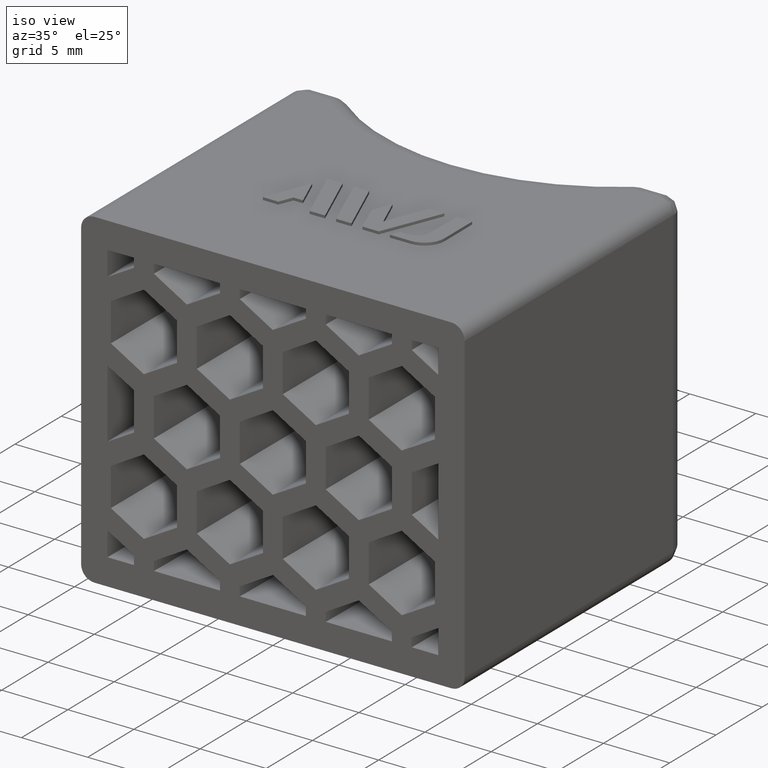
[diagram: clean part render]
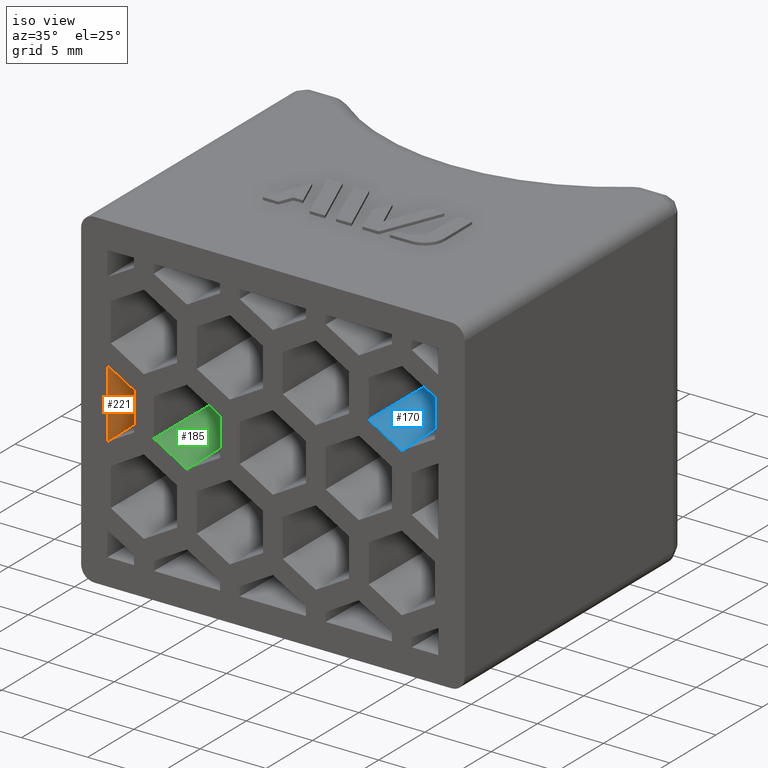
[diagram: same view with three faces highlighted in distinct colors, each labeled with its STEP entity id]
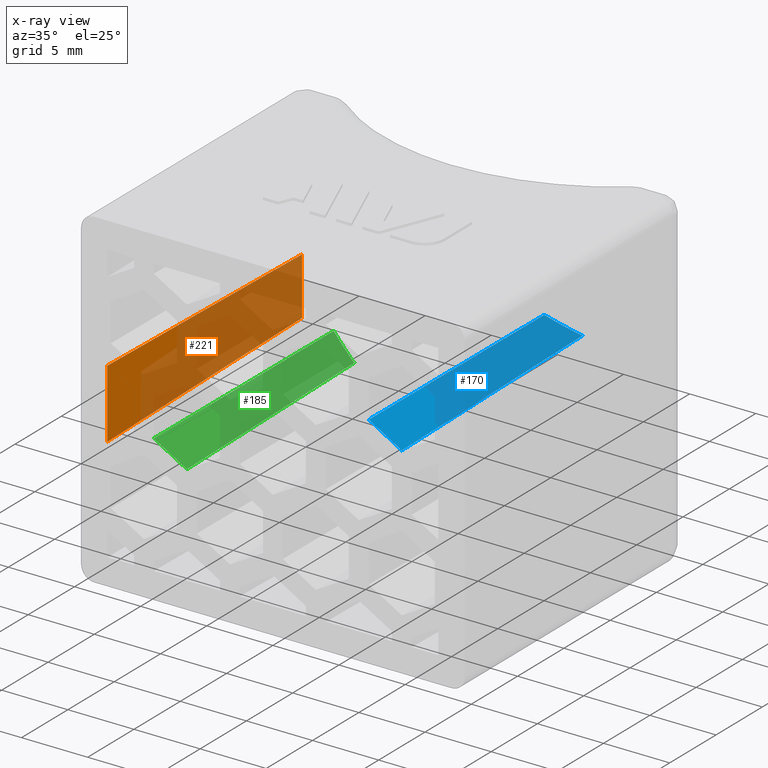
[diagram: x-ray of the same camera — body ghosted, the three highlighted faces saturated]
A machine part, iso view with three faces highlighted in distinct colors.
The next image is the same camera in x-ray (body ghosted, the three faces saturated) — at least one of them is partly hidden behind the body in this view.
Their STEP definitions:

[orange] entity #221 — the highlighted planar face has unit normal (-1, 0, 0).
#221 = ADVANCED_FACE( '', ( #608 ), #609, .F. );
#608 = FACE_OUTER_BOUND( '', #1324, .T. );
#609 = PLANE( '', #1325 );
#1324 = EDGE_LOOP( '', ( #2911, #2912, #2913, #2914 ) );
#1325 = AXIS2_PLACEMENT_3D( '', #2915, #2916, #2917 );
#2911 = ORIENTED_EDGE( '', *, *, #3779, .F. );
#2912 = ORIENTED_EDGE( '', *, *, #3393, .F. );
#2913 = ORIENTED_EDGE( '', *, *, #3775, .F. );
#2914 = ORIENTED_EDGE( '', *, *, #3844, .T. );
#2915 = CARTESIAN_POINT( '', ( -12.5000000000000, 21.0000000000000, -10.5000000000000 ) );
#2916 = DIRECTION( '', ( -1.00000000000000, 6.07153216591882E-017, 0.000000000000000 ) );
#2917 = DIRECTION( '', ( 6.07153216591882E-017, 1.00000000000000, 0.000000000000000 ) );
#3393 = EDGE_CURVE( '', #3918, #3921, #3922, .T. );
#3775 = EDGE_CURVE( '', #4580, #3918, #4581, .T. );
#3779 = EDGE_CURVE( '', #3921, #4587, #4588, .T. );
#3844 = EDGE_CURVE( '', #4580, #4587, #4681, .T. );
#3918 = VERTEX_POINT( '', #4784 );
#3921 = VERTEX_POINT( '', #4788 );
#3922 = LINE( '', #4789, #4790 );
#4580 = VERTEX_POINT( '', #5752 );
#4581 = LINE( '', #5753, #5754 );
#4587 = VERTEX_POINT( '', #5762 );
#4588 = LINE( '', #5763, #5764 );
#4681 = LINE( '', #5904, #5905 );
#4784 = CARTESIAN_POINT( '', ( -12.5000000000000, -6.93889390390723E-015, -2.59807621135332 ) );
#4788 = CARTESIAN_POINT( '', ( -12.5000000000000, -6.93889390390723E-015, 2.59807621135332 ) );
#4789 = CARTESIAN_POINT( '', ( -12.5000000000000, -6.93889390390723E-015, -10.5000000000000 ) );
#4790 = VECTOR( '', #6051, 1000.00000000000 );
#5752 = CARTESIAN_POINT( '', ( -12.5000000000000, 21.0000000000000, -2.17481338108210 ) );
#5753 = CARTESIAN_POINT( '', ( -12.5000000000000, 20.8322708975950, -2.17819402368224 ) );
#5754 = VECTOR( '', #6587, 1000.00000000000 );
#5762 = CARTESIAN_POINT( '', ( -12.5000000000000, 21.0000000000000, 2.17481338108211 ) );
#5763 = CARTESIAN_POINT( '', ( -12.5000000000000, 21.2553618517966, 2.16966646774236 ) );
#5764 = VECTOR( '', #6593, 1000.00000000000 );
#5904 = CARTESIAN_POINT( '', ( -12.5000000000000, 21.0000000000000, -10.5000000000000 ) );
#5905 = VECTOR( '', #6692, 1000.00000000000 );
#6051 = DIRECTION( '', ( 0.000000000000000, 0.000000000000000, 1.00000000000000 ) );
#6587 = DIRECTION( '', ( -6.07029929479006E-017, -0.999796942337605, -0.0201512801671580 ) );
#6593 = DIRECTION( '', ( 6.07029929479006E-017, 0.999796942337605, -0.0201512801671580 ) );
#6692 = DIRECTION( '', ( 0.000000000000000, 0.000000000000000, 1.00000000000000 ) );

[blue] entity #170 — the highlighted planar face has unit normal (-0.4999, 0.0175, -0.8659).
#170 = ADVANCED_FACE( '', ( #506 ), #507, .F. );
#506 = FACE_OUTER_BOUND( '', #1222, .T. );
#507 = PLANE( '', #1223 );
#1222 = EDGE_LOOP( '', ( #2544, #2545, #2546, #2547 ) );
#1223 = AXIS2_PLACEMENT_3D( '', #2548, #2549, #2550 );
#2544 = ORIENTED_EDGE( '', *, *, #3754, .T. );
#2545 = ORIENTED_EDGE( '', *, *, #3755, .T. );
#2546 = ORIENTED_EDGE( '', *, *, #3468, .T. );
#2547 = ORIENTED_EDGE( '', *, *, #3752, .F. );
#2548 = CARTESIAN_POINT( '', ( 4.87500000000000, -6.93889390390723E-015, 5.55699634095015 ) );
#2549 = DIRECTION( '', ( -0.499923847578196, 0.0174524064372835, -0.865893503920754 ) );
#2550 = DIRECTION( '', ( -0.866025403784439, 0.000000000000000, 0.500000000000000 ) );
#3468 = EDGE_CURVE( '', #4071, #4069, #4072, .T. );
#3752 = EDGE_CURVE( '', #4545, #4069, #4547, .T. );
#3754 = EDGE_CURVE( '', #4545, #4549, #4550, .T. );
#3755 = EDGE_CURVE( '', #4549, #4071, #4551, .T. );
#4069 = VERTEX_POINT( '', #5010 );
#4071 = VERTEX_POINT( '', #5013 );
#4072 = LINE( '', #5014, #5015 );
#4545 = VERTEX_POINT( '', #5701 );
#4547 = LINE( '', #5703, #5704 );
#4549 = VERTEX_POINT( '', #5707 );
#4550 = ELLIPSE( '', #5708, 23.3862477409846, 20.2500000000000 );
#4551 = LINE( '', #5709, #5710 );
#5010 = CARTESIAN_POINT( '', ( 9.75000000000000, -6.93889390390723E-015, 2.74241377865072 ) );
#5013 = CARTESIAN_POINT( '', ( 7.25000000000000, -6.93889390390723E-015, 4.18578945162479 ) );
#5014 = CARTESIAN_POINT( '', ( 4.87500000000000, -6.93889390390723E-015, 5.55699634095015 ) );
#5015 = VECTOR( '', #6126, 1000.00000000000 );
#5701 = CARTESIAN_POINT( '', ( 9.75000000000000, 19.5017606507012, 3.13547903618822 ) );
#5703 = CARTESIAN_POINT( '', ( 9.75000000000000, 0.0567059248553423, 2.74355670771012 ) );
#5704 = VECTOR( '', #6550, 1000.00000000000 );
#5707 = CARTESIAN_POINT( '', ( 7.57237963622284, 18.4691169897441, 4.37191542137929 ) );
#5708 = AXIS2_PLACEMENT_3D( '', #6552, #6553, #6554 );
#5709 = CARTESIAN_POINT( '', ( 7.24951778701531, -0.0276259633910786, 4.18551104582827 ) );
#5710 = VECTOR( '', #6555, 1000.00000000000 );
#6126 = DIRECTION( '', ( 0.866025403784439, 0.000000000000000, -0.500000000000000 ) );
#6550 = DIRECTION( '', ( -3.00523943436880E-018, -0.999796942337605, -0.0201512801671579 ) );
#6552 = CARTESIAN_POINT( '', ( 0.000000000000000, 37.2500000000000, 9.12236654265922 ) );
#6553 = DIRECTION( '', ( -0.499923847578196, 0.0174524064372835, -0.865893503920754 ) );
#6554 = DIRECTION( '', ( -0.865366346075250, 0.0302100515148758, 0.500228387706894 ) );
#6555 = DIRECTION( '', ( -0.0174515205435363, -0.999796942337605, -0.0100756400835790 ) );

[green] entity #185 — the highlighted planar face has unit normal (-0.4999, 0.0175, -0.8659).
#185 = ADVANCED_FACE( '', ( #536 ), #537, .F. );
#536 = FACE_OUTER_BOUND( '', #1252, .T. );
#537 = PLANE( '', #1253 );
#1252 = EDGE_LOOP( '', ( #2651, #2652, #2653, #2654 ) );
#1253 = AXIS2_PLACEMENT_3D( '', #2655, #2656, #2657 );
#2651 = ORIENTED_EDGE( '', *, *, #3787, .T. );
#2652 = ORIENTED_EDGE( '', *, *, #3788, .T. );
#2653 = ORIENTED_EDGE( '', *, *, #3480, .T. );
#2654 = ORIENTED_EDGE( '', *, *, #3785, .F. );
#2655 = CARTESIAN_POINT( '', ( -1.62500000000000, -6.93889390390723E-015, -5.70133390824756 ) );
#2656 = DIRECTION( '', ( -0.499923847578196, 0.0174524064372835, -0.865893503920754 ) );
#2657 = DIRECTION( '', ( -0.866025403784438, -9.68803173089422E-019, 0.500000000000000 ) );
#3480 = EDGE_CURVE( '', #4095, #4093, #4096, .T. );
#3785 = EDGE_CURVE( '', #4596, #4093, #4598, .T. );
#3787 = EDGE_CURVE( '', #4596, #4600, #4601, .T. );
#3788 = EDGE_CURVE( '', #4600, #4095, #4602, .T. );
#4093 = VERTEX_POINT( '', #5046 );
#4095 = VERTEX_POINT( '', #5049 );
#4096 = LINE( '', #5050, #5051 );
#4596 = VERTEX_POINT( '', #5775 );
#4598 = LINE( '', #5777, #5778 );
#4600 = VERTEX_POINT( '', #5781 );
#4601 = ELLIPSE( '', #5782, 23.3862477409846, 20.2500000000000 );
#4602 = LINE( '', #5783, #5784 );
#5046 = CARTESIAN_POINT( '', ( -6.50000000000000, -6.93889390390723E-015, -2.88675134594813 ) );
#5049 = CARTESIAN_POINT( '', ( -9.00000000000000, -6.93889390390723E-015, -1.44337567297406 ) );
#5050 = CARTESIAN_POINT( '', ( -6.50000000000000, -6.93889390390723E-015, -2.88675134594813 ) );
#5051 = VECTOR( '', #6138, 1000.00000000000 );
#5775 = CARTESIAN_POINT( '', ( -6.50000000000000, 18.0715615859893, -2.52251228383830 ) );
#5777 = CARTESIAN_POINT( '', ( -6.50000000000000, -0.0567059248553561, -2.88789427500753 ) );
#5778 = VECTOR( '', #6603, 1000.00000000000 );
#5781 = CARTESIAN_POINT( '', ( -8.66923456602642, 18.9495390211281, -1.25240816063079 ) );
#5782 = AXIS2_PLACEMENT_3D( '', #6605, #6606, #6607 );
#5783 = CARTESIAN_POINT( '', ( -8.99949240738453, 0.0290799614642775, -1.44308261424088 ) );
#5784 = VECTOR( '', #6608, 1000.00000000000 );
#6138 = DIRECTION( '', ( 0.866025403784438, 0.000000000000000, -0.500000000000000 ) );
#6603 = DIRECTION( '', ( -8.01346332263367E-018, -0.999796942337605, -0.0201512801671579 ) );
#6605 = CARTESIAN_POINT( '', ( 0.000000000000000, 37.2500000000000, -5.88874045627105 ) );
#6606 = DIRECTION( '', ( -0.499923847578196, 0.0174524064372835, -0.865893503920754 ) );
#6607 = DIRECTION( '', ( -0.865366346075250, 0.0302100515148758, 0.500228387706895 ) );
#6608 = DIRECTION( '', ( -0.0174515205435363, -0.999796942337605, -0.0100756400835790 ) );